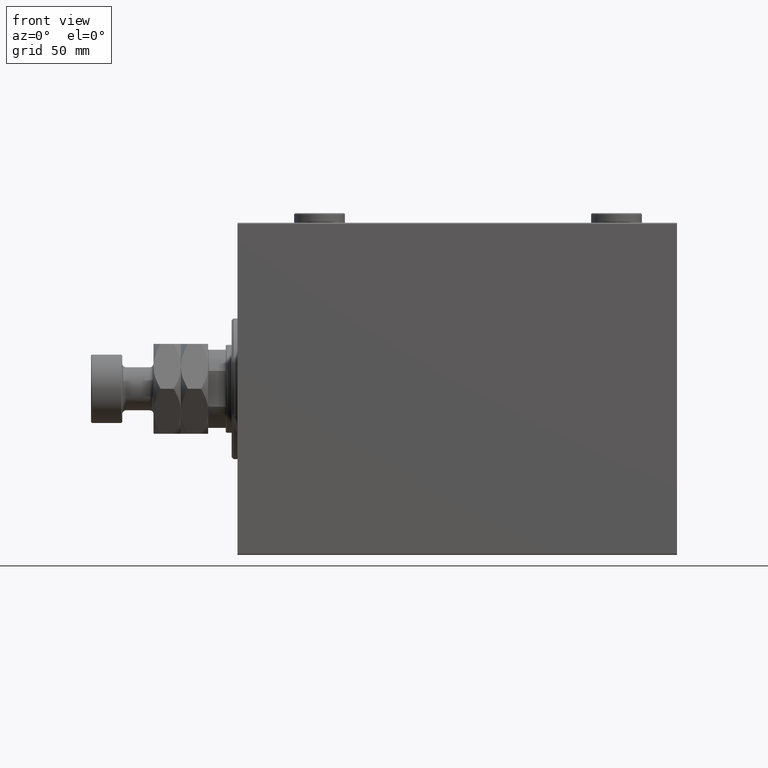
[diagram: clean part render]
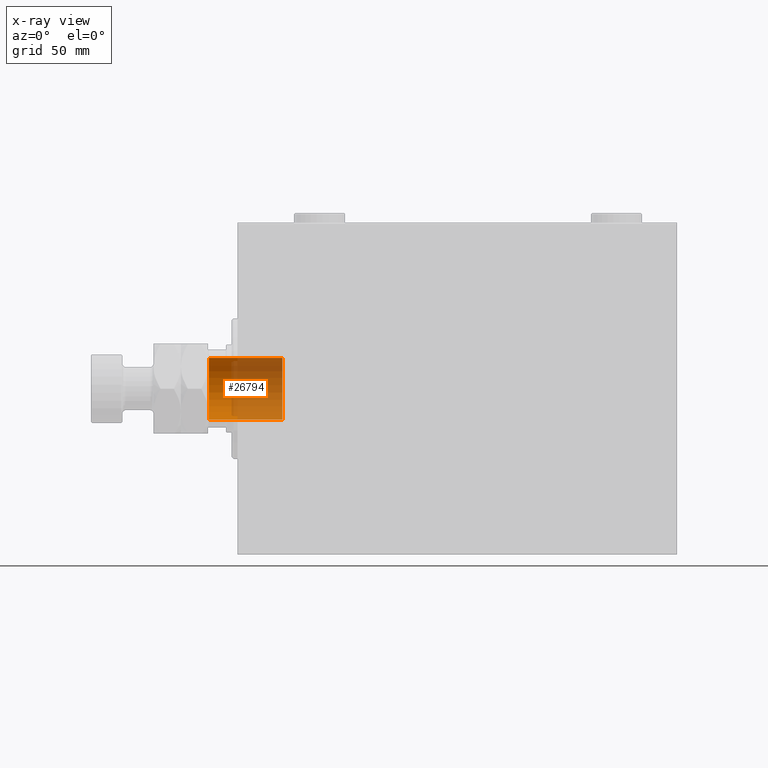
[diagram: x-ray — body ghosted, one internal face saturated and labeled with its STEP entity id]
A machine part, front view, then the same camera in x-ray: the body is ghosted and one INTERNAL B-rep face — a face not visible from any outside direction — is saturated and labeled: STEP entity #26794.
In plain terms, the highlighted cylindrical surface (edge-blend (fillet) strip) has radius 15.75 mm, axis along (-1, 0, 0).
Its self-contained STEP definition (entity closure, byte-faithful):
#2469 = CARTESIAN_POINT ( 'NONE',  ( 15.74999999999999289, 0.000000000000000000, 176.0000000000000000 ) ) ;
#2898 = DIRECTION ( 'NONE',  ( -0.000000000000000000, -0.000000000000000000, 1.000000000000000000 ) ) ;
#5562 = DIRECTION ( 'NONE',  ( 1.000000000000000000, 0.000000000000000000, 0.000000000000000000 ) ) ;
#5634 = CARTESIAN_POINT ( 'NONE',  ( -15.74999999999999289, 1.928818708657080556E-15, 176.0000000000000000 ) ) ;
#5902 = DIRECTION ( 'NONE',  ( -0.000000000000000000, -0.000000000000000000, 1.000000000000000000 ) ) ;
#6466 = CARTESIAN_POINT ( 'NONE',  ( -15.74999999999999289, 1.928818708657080556E-15, 214.0000000000000000 ) ) ;
#6717 = VERTEX_POINT ( 'NONE', #5634 ) ;
#8401 = ORIENTED_EDGE ( 'NONE', *, *, #20169, .T. ) ;
#8790 = CARTESIAN_POINT ( 'NONE',  ( 15.74999999999999289, 0.000000000000000000, 214.0000000000000000 ) ) ;
#9957 = VERTEX_POINT ( 'NONE', #23831 ) ;
#10169 = DIRECTION ( 'NONE',  ( 1.000000000000000000, 0.000000000000000000, 0.000000000000000000 ) ) ;
#11338 = VERTEX_POINT ( 'NONE', #12088 ) ;
#11885 = VECTOR ( 'NONE', #11906, 1000.000000000000000 ) ;
#11906 = DIRECTION ( 'NONE',  ( -0.000000000000000000, -0.000000000000000000, 1.000000000000000000 ) ) ;
#12088 = CARTESIAN_POINT ( 'NONE',  ( -15.74999999999999289, 1.928818708657080556E-15, 213.6999999999999602 ) ) ;
#13109 = DIRECTION ( 'NONE',  ( -0.000000000000000000, -0.000000000000000000, 1.000000000000000000 ) ) ;
#14115 = AXIS2_PLACEMENT_3D ( 'NONE', #38957, #5902, #10169 ) ;
#15127 = EDGE_LOOP ( 'NONE', ( #41935, #25454, #16116, #8401 ) ) ;
#16116 = ORIENTED_EDGE ( 'NONE', *, *, #38394, .T. ) ;
#17446 = DIRECTION ( 'NONE',  ( 0.000000000000000000, 0.000000000000000000, 1.000000000000000000 ) ) ;
#20169 = EDGE_CURVE ( 'NONE', #9957, #11338, #21473, .T. ) ;
#20783 = AXIS2_PLACEMENT_3D ( 'NONE', #45706, #13109, #31423 ) ;
#21473 = CIRCLE ( 'NONE', #44263, 15.74999999999999289 ) ;
#23262 = CIRCLE ( 'NONE', #14115, 15.74999999999999289 ) ;
#23831 = CARTESIAN_POINT ( 'NONE',  ( 15.74999999999999289, 0.000000000000000000, 213.6999999999999602 ) ) ;
#24284 = CYLINDRICAL_SURFACE ( 'NONE', #20783, 15.74999999999999289 ) ;
#24316 = EDGE_CURVE ( 'NONE', #6717, #11338, #25259, .T. ) ;
#25259 = LINE ( 'NONE', #6466, #32834 ) ;
#25454 = ORIENTED_EDGE ( 'NONE', *, *, #37212, .F. ) ;
#26794 = ADVANCED_FACE ( 'NONE', ( #41902 ), #24284, .F. ) ;
#31423 = DIRECTION ( 'NONE',  ( 1.000000000000000000, 0.000000000000000000, 0.000000000000000000 ) ) ;
#32834 = VECTOR ( 'NONE', #2898, 1000.000000000000000 ) ;
#37212 = EDGE_CURVE ( 'NONE', #38712, #6717, #23262, .T. ) ;
#38394 = EDGE_CURVE ( 'NONE', #38712, #9957, #40464, .T. ) ;
#38712 = VERTEX_POINT ( 'NONE', #2469 ) ;
#38957 = CARTESIAN_POINT ( 'NONE',  ( 0.000000000000000000, 0.000000000000000000, 176.0000000000000000 ) ) ;
#39091 = CARTESIAN_POINT ( 'NONE',  ( 0.000000000000000000, 0.000000000000000000, 213.6999999999999602 ) ) ;
#40464 = LINE ( 'NONE', #8790, #11885 ) ;
#41902 = FACE_OUTER_BOUND ( 'NONE', #15127, .T. ) ;
#41935 = ORIENTED_EDGE ( 'NONE', *, *, #24316, .F. ) ;
#44263 = AXIS2_PLACEMENT_3D ( 'NONE', #39091, #17446, #5562 ) ;
#45706 = CARTESIAN_POINT ( 'NONE',  ( 0.000000000000000000, 0.000000000000000000, 214.0000000000000000 ) ) ;